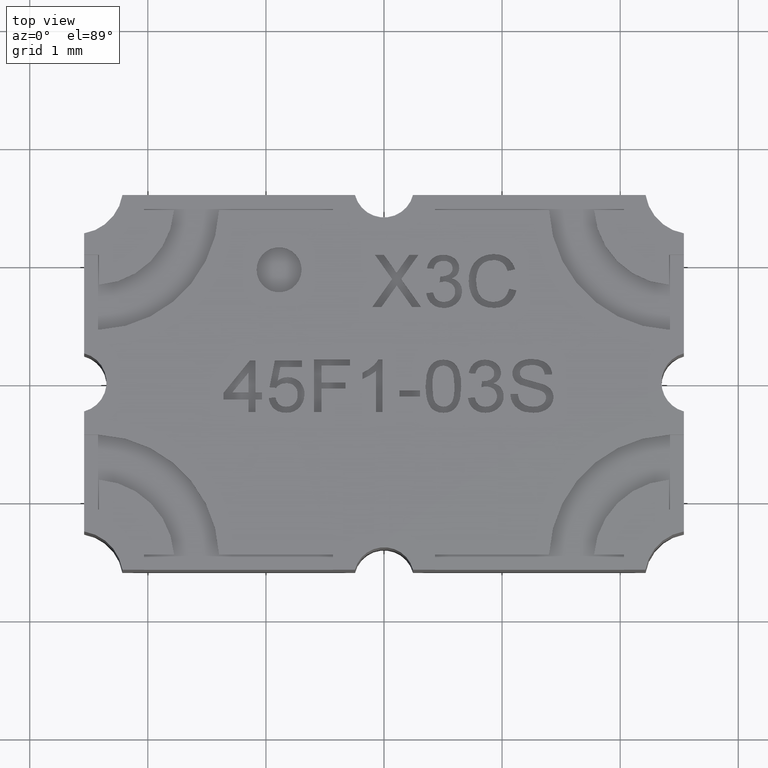
[diagram: clean part render]
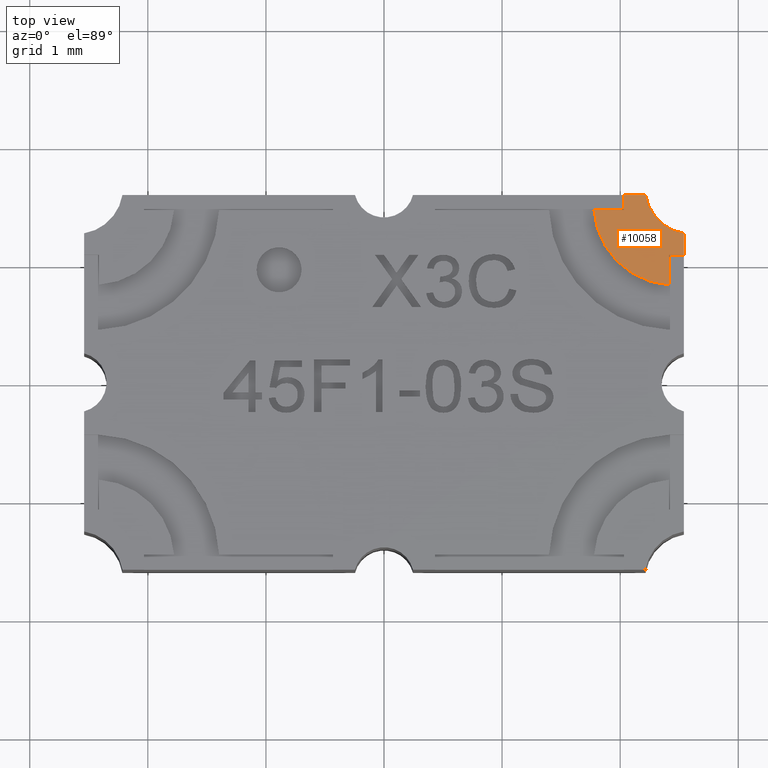
[diagram: same view with one face highlighted and labeled with its STEP entity id]
A machine part, top view. The second image highlights one B-rep face of the part: STEP entity #10058.
In plain terms, the highlighted planar face has unit normal (0, 0, 1).
Its self-contained STEP definition (entity closure, byte-faithful):
#5 = PLANE ( 'NONE',  #55 ) ;
#55 = AXIS2_PLACEMENT_3D ( 'NONE', #7733, #5808, #3999 ) ;
#289 = ORIENTED_EDGE ( 'NONE', *, *, #10614, .T. ) ;
#849 = AXIS2_PLACEMENT_3D ( 'NONE', #11070, #3284, #7925 ) ;
#970 = CARTESIAN_POINT ( 'NONE',  ( 0.09999999999999228950, -1.280553747030123384E-17, 0.06199999999999999262 ) ) ;
#1066 = CARTESIAN_POINT ( 'NONE',  ( 0.1024999999999923056, 0.06249999999999771017, 0.06199999999999999262 ) ) ;
#1388 = CARTESIAN_POINT ( 'NONE',  ( 0.09999999999999228950, 0.04249999999998981676, 0.06199999999999999262 ) ) ;
#1551 = VERTEX_POINT ( 'NONE', #10140 ) ;
#1885 = CARTESIAN_POINT ( 'NONE',  ( 0.09999999999999228950, 0.04970294145924517015, 0.06199999999999999262 ) ) ;
#2098 = ORIENTED_EDGE ( 'NONE', *, *, #7502, .F. ) ;
#2136 = VECTOR ( 'NONE', #4801, 39.37007874015748143 ) ;
#2155 = CIRCLE ( 'NONE', #6063, 0.02689445282398319342 ) ;
#3187 = VERTEX_POINT ( 'NONE', #9377 ) ;
#3284 = DIRECTION ( 'NONE',  ( 0.000000000000000000, 0.000000000000000000, 1.000000000000000000 ) ) ;
#3328 = DIRECTION ( 'NONE',  ( -1.000000000000000000, 0.000000000000000000, 0.000000000000000000 ) ) ;
#3999 = DIRECTION ( 'NONE',  ( 1.000000000000000000, 0.000000000000000000, -0.000000000000000000 ) ) ;
#4217 = CARTESIAN_POINT ( 'NONE',  ( 0.07000000000007512713, 0.05750000000000455441, 0.06199999999999999262 ) ) ;
#4421 = DIRECTION ( 'NONE',  ( 0.000000000000000000, 0.000000000000000000, 1.000000000000000000 ) ) ;
#4540 = CIRCLE ( 'NONE', #849, 0.01549999999997453762 ) ;
#4643 = CARTESIAN_POINT ( 'NONE',  ( 0.08000000000006662892, -2.433052119352737829E-16, 0.06199999999999999262 ) ) ;
#4710 = DIRECTION ( 'NONE',  ( 1.024442997625484647E-14, -1.000000000000000000, 0.000000000000000000 ) ) ;
#4801 = DIRECTION ( 'NONE',  ( 1.000000000000000000, 0.000000000000000000, -0.000000000000000000 ) ) ;
#4831 = DIRECTION ( 'NONE',  ( 0.000000000000000000, -1.000000000000000000, 0.000000000000000000 ) ) ;
#4886 = EDGE_CURVE ( 'NONE', #10958, #1551, #12555, .T. ) ;
#5310 = VERTEX_POINT ( 'NONE', #1388 ) ;
#5618 = CARTESIAN_POINT ( 'NONE',  ( 0.08000000000006597667, 0.06249999999999777955, 0.06199999999999999262 ) ) ;
#5633 = DIRECTION ( 'NONE',  ( 1.000000000000000000, 1.024442997636413052E-14, -0.000000000000000000 ) ) ;
#5747 = FACE_OUTER_BOUND ( 'NONE', #10904, .T. ) ;
#5750 = LINE ( 'NONE', #11464, #10956 ) ;
#5808 = DIRECTION ( 'NONE',  ( 0.000000000000000000, 0.000000000000000000, 1.000000000000000000 ) ) ;
#5855 = VECTOR ( 'NONE', #4710, 39.37007874015748143 ) ;
#6063 = AXIS2_PLACEMENT_3D ( 'NONE', #7255, #4421, #6354 ) ;
#6180 = VERTEX_POINT ( 'NONE', #4217 ) ;
#6354 = DIRECTION ( 'NONE',  ( 1.000000000000000000, 0.000000000000000000, 0.000000000000000000 ) ) ;
#6406 = LINE ( 'NONE', #12374, #6433 ) ;
#6433 = VECTOR ( 'NONE', #5633, 39.37007874015748143 ) ;
#6682 = VECTOR ( 'NONE', #3328, 39.37007874015748143 ) ;
#6707 = EDGE_CURVE ( 'NONE', #3187, #7865, #4540, .T. ) ;
#7006 = EDGE_CURVE ( 'NONE', #7865, #5310, #11650, .T. ) ;
#7255 = CARTESIAN_POINT ( 'NONE',  ( 0.09683198508068217858, 0.05933198508060383292, 0.06199999999999999262 ) ) ;
#7425 = CARTESIAN_POINT ( 'NONE',  ( 0.09500000000005238976, 0.03249999999999887007, 0.06199999999999999262 ) ) ;
#7445 = ORIENTED_EDGE ( 'NONE', *, *, #10844, .T. ) ;
#7502 = EDGE_CURVE ( 'NONE', #10958, #3187, #9871, .T. ) ;
#7733 = CARTESIAN_POINT ( 'NONE',  ( 0.1024999999999923056, -1.280553747030123384E-17, 0.06199999999999999262 ) ) ;
#7865 = VERTEX_POINT ( 'NONE', #1885 ) ;
#7925 = DIRECTION ( 'NONE',  ( 1.000000000000000000, 0.000000000000000000, 0.000000000000000000 ) ) ;
#8287 = LINE ( 'NONE', #12204, #6682 ) ;
#8697 = ORIENTED_EDGE ( 'NONE', *, *, #4886, .T. ) ;
#8707 = DIRECTION ( 'NONE',  ( 0.000000000000000000, 1.000000000000000000, 0.000000000000000000 ) ) ;
#8743 = ORIENTED_EDGE ( 'NONE', *, *, #9264, .T. ) ;
#9254 = EDGE_CURVE ( 'NONE', #1551, #6180, #8287, .T. ) ;
#9264 = EDGE_CURVE ( 'NONE', #6180, #10517, #2155, .T. ) ;
#9324 = ORIENTED_EDGE ( 'NONE', *, *, #9254, .T. ) ;
#9377 = CARTESIAN_POINT ( 'NONE',  ( 0.08720294145923976337, 0.06249999999999771017, 0.06199999999999999262 ) ) ;
#9668 = CARTESIAN_POINT ( 'NONE',  ( 0.09500000000005238976, 0.04249999999998977512, 0.06199999999999999262 ) ) ;
#9871 = LINE ( 'NONE', #1066, #2136 ) ;
#10058 = ADVANCED_FACE ( 'NONE', ( #5747 ), #5, .T. ) ;
#10140 = CARTESIAN_POINT ( 'NONE',  ( 0.08000000000006603218, 0.05750000000000454053, 0.06199999999999999262 ) ) ;
#10267 = ORIENTED_EDGE ( 'NONE', *, *, #7006, .F. ) ;
#10517 = VERTEX_POINT ( 'NONE', #7425 ) ;
#10614 = EDGE_CURVE ( 'NONE', #10851, #5310, #6406, .T. ) ;
#10844 = EDGE_CURVE ( 'NONE', #10517, #10851, #5750, .T. ) ;
#10851 = VERTEX_POINT ( 'NONE', #9668 ) ;
#10875 = ORIENTED_EDGE ( 'NONE', *, *, #6707, .F. ) ;
#10904 = EDGE_LOOP ( 'NONE', ( #2098, #8697, #9324, #8743, #7445, #289, #10267, #10875 ) ) ;
#10956 = VECTOR ( 'NONE', #8707, 39.37007874015748143 ) ;
#10958 = VERTEX_POINT ( 'NONE', #5618 ) ;
#11070 = CARTESIAN_POINT ( 'NONE',  ( 0.1024999999999923195, 0.06499999999999771239, 0.06199999999999999262 ) ) ;
#11464 = CARTESIAN_POINT ( 'NONE',  ( 0.09500000000005238976, -1.280553747030123384E-17, 0.06199999999999999262 ) ) ;
#11650 = LINE ( 'NONE', #970, #12409 ) ;
#12204 = CARTESIAN_POINT ( 'NONE',  ( 0.1024999999999923056, 0.05750000000000454053, 0.06199999999999999262 ) ) ;
#12374 = CARTESIAN_POINT ( 'NONE',  ( 0.1024999999999918615, 0.04249999999998985145, 0.06199999999999999262 ) ) ;
#12409 = VECTOR ( 'NONE', #4831, 39.37007874015748143 ) ;
#12555 = LINE ( 'NONE', #4643, #5855 ) ;